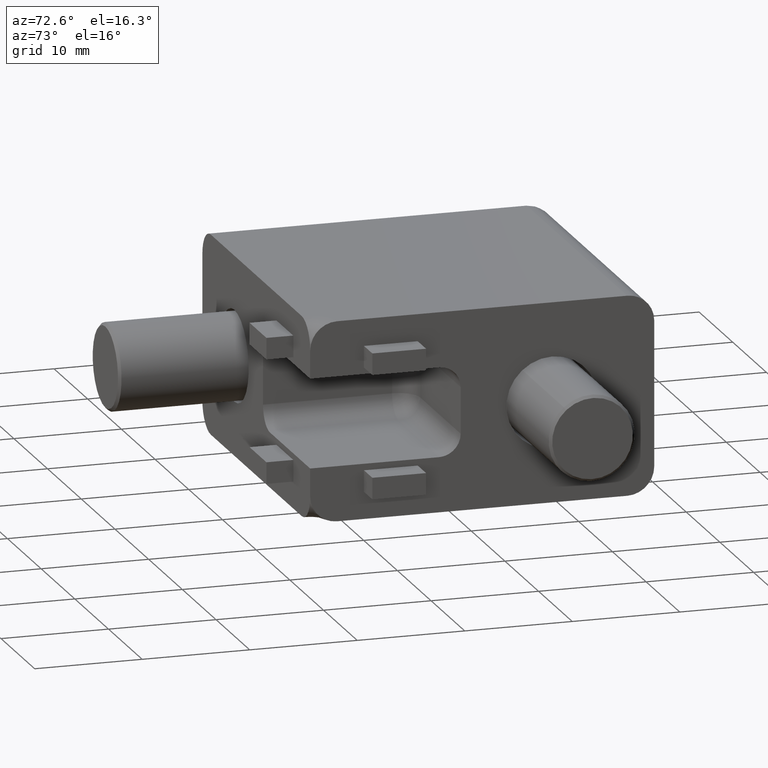
[diagram: clean part render]
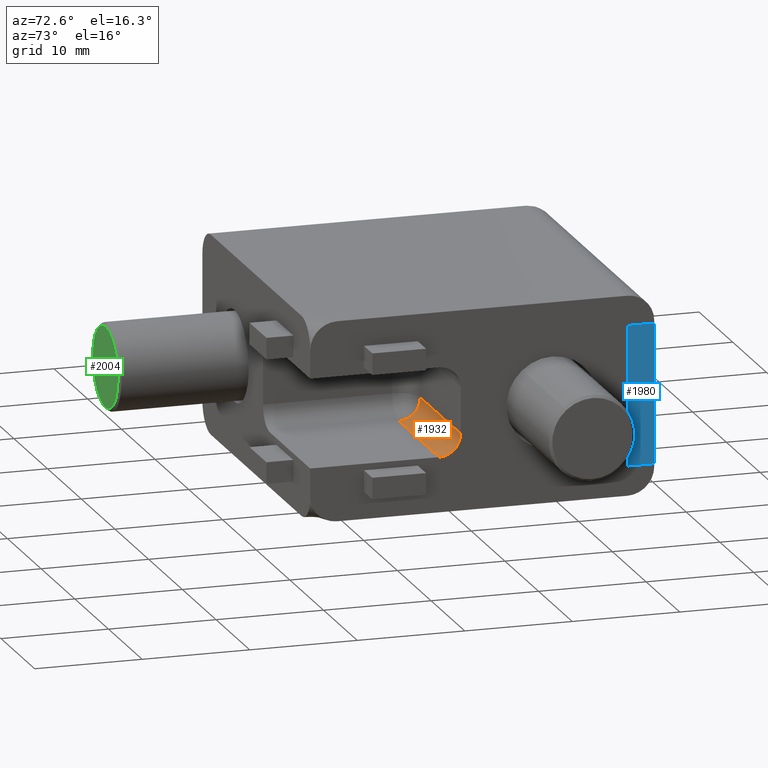
[diagram: same view with three faces highlighted in distinct colors, each labeled with its STEP entity id]
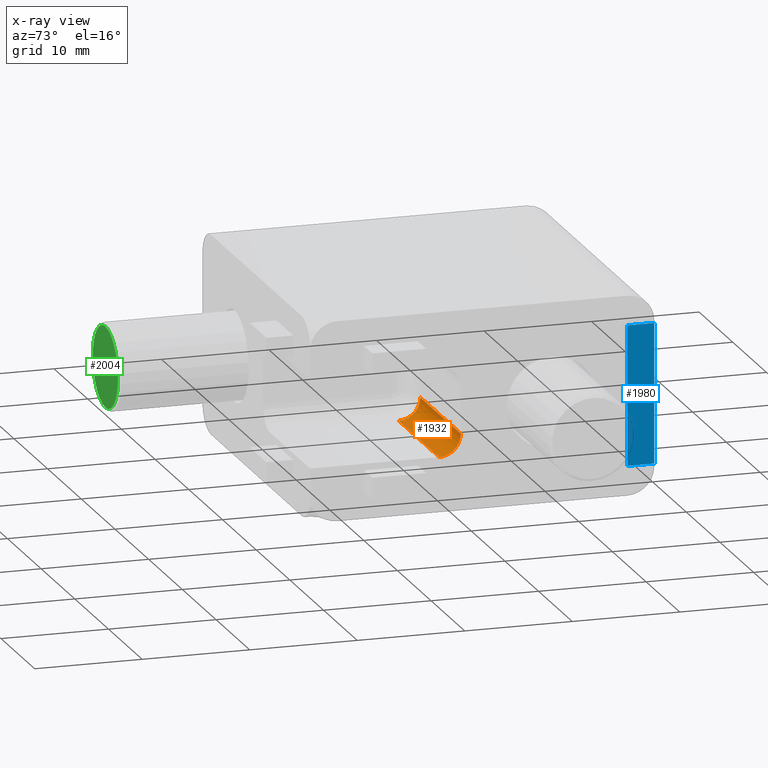
[diagram: x-ray of the same camera — body ghosted, the three highlighted faces saturated]
A machine part, auxiliary view with three faces highlighted in distinct colors.
The next image is the same camera in x-ray (body ghosted, the three faces saturated) — at least one of them is partly hidden behind the body in this view.
Their STEP definitions:

[orange] entity #1932 — the highlighted cylindrical surface (edge-blend (fillet) strip) has radius 2 mm, axis along (1, 0, -0).
#159=FACE_OUTER_BOUND('',#280,.T.);
#280=EDGE_LOOP('',(#1477,#1478,#1479,#1480));
#438=LINE('',#3153,#612);
#447=LINE('',#3170,#621);
#612=VECTOR('',#2457,1000.);
#621=VECTOR('',#2472,1000.);
#754=CIRCLE('',#2078,2.);
#776=CIRCLE('',#2120,2.);
#870=VERTEX_POINT('',#3037);
#871=VERTEX_POINT('',#3039);
#912=VERTEX_POINT('',#3152);
#917=VERTEX_POINT('',#3168);
#1070=EDGE_CURVE('',#870,#871,#754,.T.);
#1128=EDGE_CURVE('',#871,#912,#438,.T.);
#1137=EDGE_CURVE('',#917,#870,#447,.T.);
#1140=EDGE_CURVE('',#912,#917,#776,.T.);
#1477=ORIENTED_EDGE('',*,*,#1070,.F.);
#1478=ORIENTED_EDGE('',*,*,#1137,.F.);
#1479=ORIENTED_EDGE('',*,*,#1140,.F.);
#1480=ORIENTED_EDGE('',*,*,#1128,.F.);
#1886=CYLINDRICAL_SURFACE('',#2119,2.);
#1932=ADVANCED_FACE('',(#159),#1886,.F.);
#2078=AXIS2_PLACEMENT_3D('',#3040,#2351,#2352);
#2119=AXIS2_PLACEMENT_3D('',#3175,#2481,#2482);
#2120=AXIS2_PLACEMENT_3D('',#3176,#2483,#2484);
#2351=DIRECTION('center_axis',(-1.,0.,0.));
#2352=DIRECTION('ref_axis',(0.,0.,1.));
#2457=DIRECTION('',(-1.,0.,1.23908819712629E-16));
#2472=DIRECTION('',(1.,0.,-1.23908819712629E-16));
#2481=DIRECTION('center_axis',(1.,0.,-1.23908819712629E-16));
#2482=DIRECTION('ref_axis',(-1.23908819712629E-16,0.,-1.));
#2483=DIRECTION('center_axis',(1.,0.,0.));
#2484=DIRECTION('ref_axis',(0.,0.,-1.));
#3037=CARTESIAN_POINT('',(16.7248569721971,0.0522856449550502,-2.15));
#3039=CARTESIAN_POINT('',(16.7248569721971,-1.94771435504495,-4.15));
#3040=CARTESIAN_POINT('Origin',(16.7248569721971,-1.94771435504495,-2.15));
#3152=CARTESIAN_POINT('',(4.72485697219707,-1.94771435504495,-4.15));
#3153=CARTESIAN_POINT('',(16.7248569721971,-1.94771435504495,-4.15));
#3168=CARTESIAN_POINT('',(4.72485697219707,0.0522856449550502,-2.15));
#3170=CARTESIAN_POINT('',(16.7248569721971,0.0522856449550502,-2.15));
#3175=CARTESIAN_POINT('Origin',(16.7248569721971,-1.94771435504495,-2.15));
#3176=CARTESIAN_POINT('Origin',(4.72485697219707,-1.94771435504495,-2.15));

[blue] entity #1980 — the highlighted planar face has unit normal (-1, 0, 0).
#94=PLANE('',#2191);
#207=FACE_OUTER_BOUND('',#338,.T.);
#338=EDGE_LOOP('',(#1695,#1696,#1697,#1698));
#497=LINE('',#3432,#671);
#501=LINE('',#3447,#675);
#505=LINE('',#3456,#679);
#506=LINE('',#3457,#680);
#671=VECTOR('',#2662,1000.);
#675=VECTOR('',#2676,1000.);
#679=VECTOR('',#2684,1000.);
#680=VECTOR('',#2685,1000.);
#960=VERTEX_POINT('',#3429);
#961=VERTEX_POINT('',#3431);
#967=VERTEX_POINT('',#3446);
#970=VERTEX_POINT('',#3455);
#1215=EDGE_CURVE('',#961,#960,#497,.T.);
#1222=EDGE_CURVE('',#961,#967,#501,.T.);
#1227=EDGE_CURVE('',#970,#960,#505,.T.);
#1228=EDGE_CURVE('',#967,#970,#506,.T.);
#1695=ORIENTED_EDGE('',*,*,#1222,.F.);
#1696=ORIENTED_EDGE('',*,*,#1215,.T.);
#1697=ORIENTED_EDGE('',*,*,#1227,.F.);
#1698=ORIENTED_EDGE('',*,*,#1228,.F.);
#1980=ADVANCED_FACE('',(#207),#94,.F.);
#2191=AXIS2_PLACEMENT_3D('',#3454,#2682,#2683);
#2662=DIRECTION('',(0.,0.,-1.));
#2676=DIRECTION('',(0.,1.,-3.46944695195362E-16));
#2682=DIRECTION('center_axis',(-1.,0.,0.));
#2683=DIRECTION('ref_axis',(0.,0.,1.));
#2684=DIRECTION('',(0.,-1.,3.65204942310907E-16));
#2685=DIRECTION('',(0.,0.,-1.));
#3429=CARTESIAN_POINT('',(16.7248569721971,15.5522856449551,-6.50000000013051));
#3431=CARTESIAN_POINT('',(16.7248569721971,15.5522856449551,6.50000000013051));
#3432=CARTESIAN_POINT('',(16.7248569721971,15.5522856449551,500000.));
#3446=CARTESIAN_POINT('',(16.7248569721971,18.052285644955,6.50000000013051));
#3447=CARTESIAN_POINT('',(16.7248569721971,-13.947714355045,6.50000000000001));
#3454=CARTESIAN_POINT('Origin',(16.7248569721971,15.5522856449551,500000.));
#3455=CARTESIAN_POINT('',(16.7248569721971,18.052285644955,-6.50000000013051));
#3456=CARTESIAN_POINT('',(16.7248569721971,15.5522856451377,-6.50000000001683));
#3457=CARTESIAN_POINT('',(16.7248569721971,18.052285644955,500000.));

[green] entity #2004 — the highlighted planar face has unit normal (0, -1, 0).
#112=PLANE('',#2230);
#231=FACE_OUTER_BOUND('',#364,.T.);
#364=EDGE_LOOP('',(#1801,#1802));
#806=CIRCLE('',#2207,3.75);
#807=CIRCLE('',#2208,3.75);
#976=VERTEX_POINT('',#3484);
#977=VERTEX_POINT('',#3486);
#1240=EDGE_CURVE('',#977,#976,#806,.T.);
#1241=EDGE_CURVE('',#976,#977,#807,.T.);
#1801=ORIENTED_EDGE('',*,*,#1240,.T.);
#1802=ORIENTED_EDGE('',*,*,#1241,.T.);
#2004=ADVANCED_FACE('',(#231),#112,.T.);
#2207=AXIS2_PLACEMENT_3D('',#3487,#2723,#2724);
#2208=AXIS2_PLACEMENT_3D('',#3488,#2725,#2726);
#2230=AXIS2_PLACEMENT_3D('',#3550,#2789,#2790);
#2723=DIRECTION('center_axis',(0.,-1.,0.));
#2724=DIRECTION('ref_axis',(0.,0.,-1.));
#2725=DIRECTION('center_axis',(0.,-1.,0.));
#2726=DIRECTION('ref_axis',(0.,0.,-1.));
#2789=DIRECTION('center_axis',(0.,-1.,0.));
#2790=DIRECTION('ref_axis',(0.,0.,-1.));
#3484=CARTESIAN_POINT('',(-5.77514302780293,-25.9477143550449,-3.75));
#3486=CARTESIAN_POINT('',(-5.77514302780293,-25.9477143550449,3.75));
#3487=CARTESIAN_POINT('Origin',(-5.77514302780293,-25.9477143550449,8.67361737988404E-16));
#3488=CARTESIAN_POINT('Origin',(-5.77514302780293,-25.9477143550449,8.67361737988404E-16));
#3550=CARTESIAN_POINT('Origin',(-5.77514302780293,-25.9477143550449,8.67361737988404E-16));